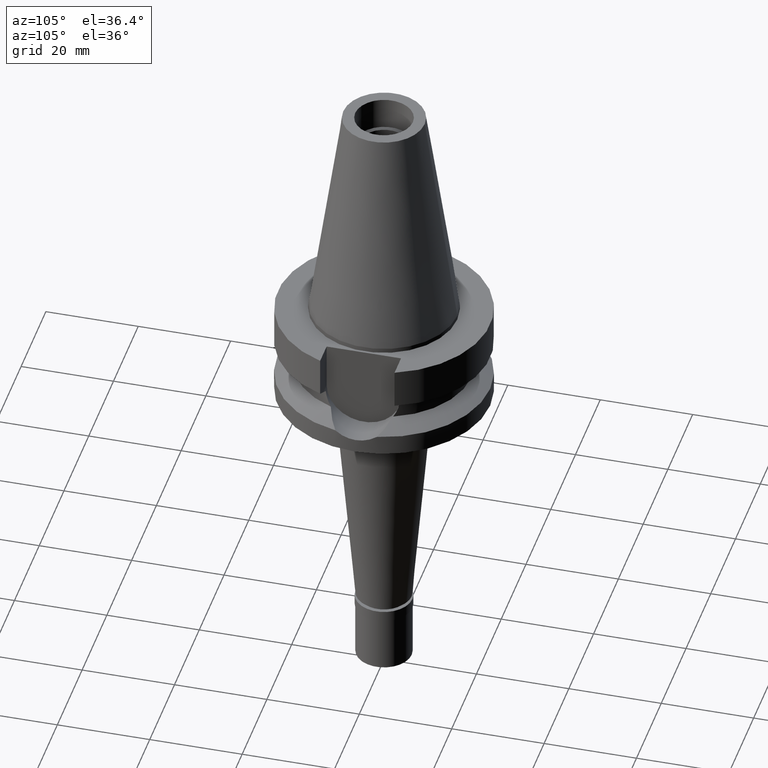
[diagram: clean part render]
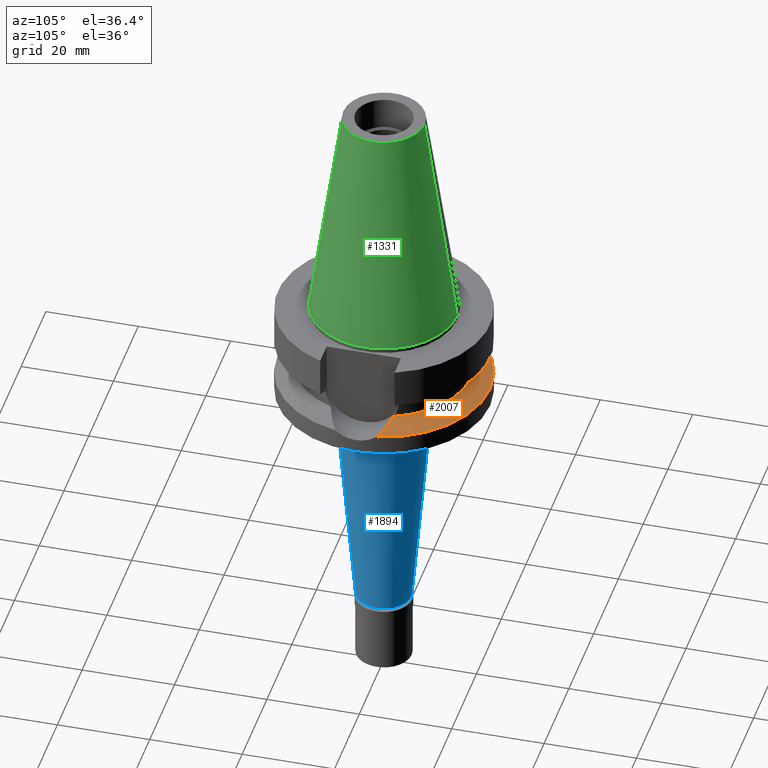
[diagram: same view with three faces highlighted in distinct colors, each labeled with its STEP entity id]
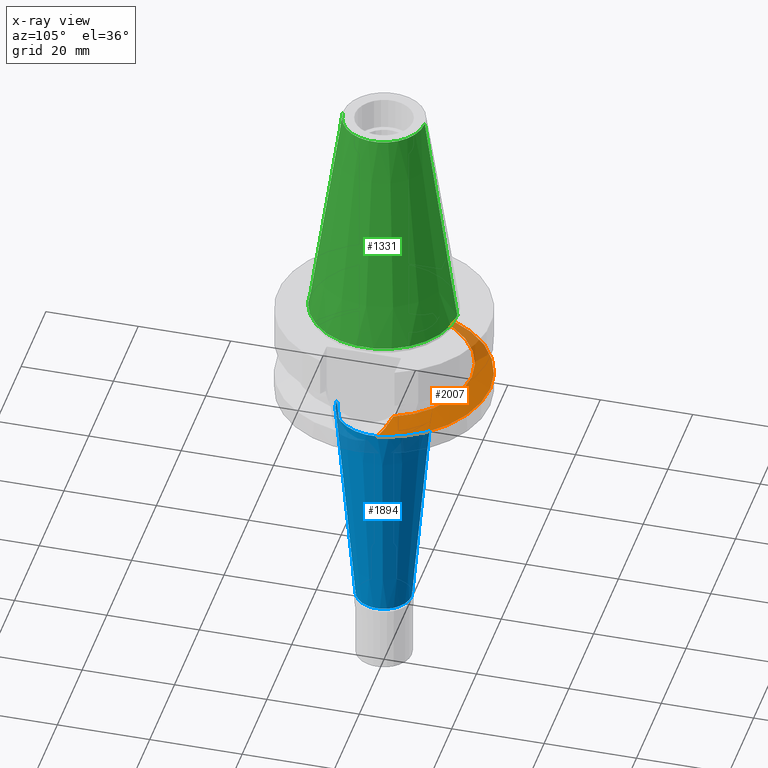
[diagram: x-ray of the same camera — body ghosted, the three highlighted faces saturated]
A machine part, auxiliary view with three faces highlighted in distinct colors.
The next image is the same camera in x-ray (body ghosted, the three faces saturated) — at least one of them is partly hidden behind the body in this view.
Their STEP definitions:

[orange] entity #2007 — the highlighted conical surface has half-angle 60 deg.
#47 = VERTEX_POINT ( 'NONE', #1127 ) ;
#80 = DIRECTION ( 'NONE',  ( 0.0000000000000000000, -1.000000000000000000, 0.0000000000000000000 ) ) ;
#239 = ORIENTED_EDGE ( 'NONE', *, *, #2197, .F. ) ;
#261 = CIRCLE ( 'NONE', #1932, 19.00000000000000000 ) ;
#275 = AXIS2_PLACEMENT_3D ( 'NONE', #821, #1728, #782 ) ;
#516 = CIRCLE ( 'NONE', #275, 23.00000000000000000 ) ;
#588 = CARTESIAN_POINT ( 'NONE',  ( -22.55786346208000026, 4.488072640470000430, -17.63279163029000074 ) ) ;
#606 = CARTESIAN_POINT ( 'NONE',  ( 22.55786346208000026, 4.488072640470000430, -17.63279163029000074 ) ) ;
#639 = ORIENTED_EDGE ( 'NONE', *, *, #1483, .F. ) ;
#657 = VERTEX_POINT ( 'NONE', #588 ) ;
#720 = CARTESIAN_POINT ( 'NONE',  ( 0.0000000000000000000, 23.00000000000000000, -17.63279163029000074 ) ) ;
#737 = CONICAL_SURFACE ( 'NONE', #1220, 21.00000000000000000, 1.047197551196400456 ) ;
#742 = EDGE_CURVE ( 'NONE', #2048, #897, #516, .T. ) ;
#744 = CARTESIAN_POINT ( 'NONE',  ( -21.37344794607803067, 5.343258989353176780, -17.05846002349050750 ) ) ;
#782 = DIRECTION ( 'NONE',  ( 0.0000000000000000000, 1.000000000000000000, 0.0000000000000000000 ) ) ;
#817 = B_SPLINE_CURVE_WITH_KNOTS ( 'NONE', 3,
 ( #958, #1441, #744, #1660 ),
 .UNSPECIFIED., .F., .F.,
 ( 4, 4 ),
 ( 0.0000000000000000000, 1.000000000000000000 ),
 .UNSPECIFIED. ) ;
#821 = CARTESIAN_POINT ( 'NONE',  ( 0.0000000000000000000, 1.022848384030000006E-14, -17.63279163029000074 ) ) ;
#897 = VERTEX_POINT ( 'NONE', #1160 ) ;
#914 = CARTESIAN_POINT ( 'NONE',  ( 0.0000000000000000000, 1.022848384030000006E-14, -17.63279163029000074 ) ) ;
#936 = CARTESIAN_POINT ( 'NONE',  ( -17.75736593456000278, 6.758398853743999624, -15.32339055352999857 ) ) ;
#958 = CARTESIAN_POINT ( 'NONE',  ( -17.75736593456000278, 6.758398853743999624, -15.32339055352999857 ) ) ;
#969 = CARTESIAN_POINT ( 'NONE',  ( 0.0000000000000000000, 1.022848384030000006E-14, -15.32339055352999857 ) ) ;
#982 = CARTESIAN_POINT ( 'NONE',  ( 0.0000000000000000000, 1.022848384030000006E-14, -16.47809109191000232 ) ) ;
#995 = DIRECTION ( 'NONE',  ( 0.0000000000000000000, 0.0000000000000000000, 1.000000000000000000 ) ) ;
#1127 = CARTESIAN_POINT ( 'NONE',  ( 17.75736593456000278, 6.758398853743999624, -15.32339055352999857 ) ) ;
#1145 = DIRECTION ( 'NONE',  ( 0.0000000000000000000, 0.0000000000000000000, -1.000000000000000000 ) ) ;
#1160 = CARTESIAN_POINT ( 'NONE',  ( 22.55786346208000026, 4.488072640470000430, -17.63279163029000074 ) ) ;
#1220 = AXIS2_PLACEMENT_3D ( 'NONE', #982, #2135, #80 ) ;
#1230 = ORIENTED_EDGE ( 'NONE', *, *, #742, .F. ) ;
#1314 = CARTESIAN_POINT ( 'NONE',  ( 17.75736593456000278, 6.758398853743999624, -15.32339055352999857 ) ) ;
#1378 = EDGE_CURVE ( 'NONE', #657, #2048, #1647, .T. ) ;
#1441 = CARTESIAN_POINT ( 'NONE',  ( -19.77328210357136484, 6.137069160717628868, -16.28355951940487500 ) ) ;
#1483 = EDGE_CURVE ( 'NONE', #2819, #657, #817, .T. ) ;
#1551 = EDGE_CURVE ( 'NONE', #47, #2819, #261, .T. ) ;
#1647 = CIRCLE ( 'NONE', #2465, 23.00000000000001066 ) ;
#1660 = CARTESIAN_POINT ( 'NONE',  ( -22.55786346208000026, 4.488072640470000430, -17.63279163029000074 ) ) ;
#1728 = DIRECTION ( 'NONE',  ( 0.0000000000000000000, 0.0000000000000000000, -1.000000000000000000 ) ) ;
#1740 = EDGE_LOOP ( 'NONE', ( #2666, #239, #1230, #2823, #639 ) ) ;
#1851 = DIRECTION ( 'NONE',  ( -0.9807766722643714852, 0.1951335930638943839, 0.0000000000000000000 ) ) ;
#1932 = AXIS2_PLACEMENT_3D ( 'NONE', #969, #995, #2400 ) ;
#1937 = CARTESIAN_POINT ( 'NONE',  ( 19.77328210349241289, 6.137069160753068964, -16.28355951935007795 ) ) ;
#2007 = ADVANCED_FACE ( 'NONE', ( #2321 ), #737, .T. ) ;
#2048 = VERTEX_POINT ( 'NONE', #720 ) ;
#2135 = DIRECTION ( 'NONE',  ( 0.0000000000000000000, 0.0000000000000000000, -1.000000000000000000 ) ) ;
#2197 = EDGE_CURVE ( 'NONE', #897, #47, #2687, .T. ) ;
#2321 = FACE_OUTER_BOUND ( 'NONE', #1740, .T. ) ;
#2400 = DIRECTION ( 'NONE',  ( 0.0000000000000000000, 1.000000000000000000, 0.0000000000000000000 ) ) ;
#2465 = AXIS2_PLACEMENT_3D ( 'NONE', #914, #1145, #1851 ) ;
#2649 = CARTESIAN_POINT ( 'NONE',  ( 21.37344794599907871, 5.343258989407346782, -17.05846002345411705 ) ) ;
#2666 = ORIENTED_EDGE ( 'NONE', *, *, #1551, .F. ) ;
#2687 = B_SPLINE_CURVE_WITH_KNOTS ( 'NONE', 3,
 ( #606, #2649, #1937, #1314 ),
 .UNSPECIFIED., .F., .F.,
 ( 4, 4 ),
 ( 0.0000000000000000000, 1.000000000000000000 ),
 .UNSPECIFIED. ) ;
#2819 = VERTEX_POINT ( 'NONE', #936 ) ;
#2823 = ORIENTED_EDGE ( 'NONE', *, *, #1378, .F. ) ;

[blue] entity #1894 — the highlighted conical surface has half-angle 5 deg.
#7 = CARTESIAN_POINT ( 'NONE',  ( 0.0000000000000000000, -6.000000000000000000, -74.80000000000001137 ) ) ;
#20 = VECTOR ( 'NONE', #514, 1000.000000000000000 ) ;
#56 = VERTEX_POINT ( 'NONE', #2761 ) ;
#82 = CIRCLE ( 'NONE', #1850, 10.18195811653999883 ) ;
#210 = LINE ( 'NONE', #1118, #1718 ) ;
#272 = ORIENTED_EDGE ( 'NONE', *, *, #446, .F. ) ;
#446 = EDGE_CURVE ( 'NONE', #1073, #56, #210, .T. ) ;
#514 = DIRECTION ( 'NONE',  ( 0.0000000000000000000, 0.08715574274767391716, -0.9961946980917442129 ) ) ;
#519 = CARTESIAN_POINT ( 'NONE',  ( 0.0000000000000000000, 0.0000000000000000000, -50.89999999999999858 ) ) ;
#766 = VERTEX_POINT ( 'NONE', #7 ) ;
#768 = FACE_OUTER_BOUND ( 'NONE', #1340, .T. ) ;
#840 = EDGE_CURVE ( 'NONE', #1385, #1073, #82, .T. ) ;
#912 = DIRECTION ( 'NONE',  ( 0.0000000000000000000, -0.08715574274767391716, -0.9961946980917442129 ) ) ;
#940 = AXIS2_PLACEMENT_3D ( 'NONE', #519, #1412, #2816 ) ;
#952 = LINE ( 'NONE', #1857, #20 ) ;
#1023 = AXIS2_PLACEMENT_3D ( 'NONE', #1387, #1807, #1625 ) ;
#1073 = VERTEX_POINT ( 'NONE', #2461 ) ;
#1118 = CARTESIAN_POINT ( 'NONE',  ( 0.0000000000000000000, 10.18195811653999883, -27.00000000000000000 ) ) ;
#1258 = ORIENTED_EDGE ( 'NONE', *, *, #2706, .T. ) ;
#1340 = EDGE_LOOP ( 'NONE', ( #2247, #1258, #1485, #272 ) ) ;
#1374 = DIRECTION ( 'NONE',  ( 0.0000000000000000000, 0.0000000000000000000, 1.000000000000000000 ) ) ;
#1385 = VERTEX_POINT ( 'NONE', #2754 ) ;
#1387 = CARTESIAN_POINT ( 'NONE',  ( 0.0000000000000000000, 0.0000000000000000000, -74.80000000000001137 ) ) ;
#1412 = DIRECTION ( 'NONE',  ( 0.0000000000000000000, 0.0000000000000000000, 1.000000000000000000 ) ) ;
#1485 = ORIENTED_EDGE ( 'NONE', *, *, #1773, .T. ) ;
#1625 = DIRECTION ( 'NONE',  ( 0.0000000000000000000, -1.000000000000000000, 0.0000000000000000000 ) ) ;
#1718 = VECTOR ( 'NONE', #912, 1000.000000000000000 ) ;
#1773 = EDGE_CURVE ( 'NONE', #766, #56, #2372, .T. ) ;
#1807 = DIRECTION ( 'NONE',  ( 0.0000000000000000000, 0.0000000000000000000, 1.000000000000000000 ) ) ;
#1827 = CARTESIAN_POINT ( 'NONE',  ( 0.0000000000000000000, 0.0000000000000000000, -27.00000000000000000 ) ) ;
#1850 = AXIS2_PLACEMENT_3D ( 'NONE', #1827, #1374, #2729 ) ;
#1857 = CARTESIAN_POINT ( 'NONE',  ( 0.0000000000000000000, -10.18195811653999883, -27.00000000000000000 ) ) ;
#1894 = ADVANCED_FACE ( 'NONE', ( #768 ), #2240, .T. ) ;
#2240 = CONICAL_SURFACE ( 'NONE', #940, 8.090979058269999413, 0.08726646259969973729 ) ;
#2247 = ORIENTED_EDGE ( 'NONE', *, *, #840, .F. ) ;
#2372 = CIRCLE ( 'NONE', #1023, 6.000000000000000000 ) ;
#2461 = CARTESIAN_POINT ( 'NONE',  ( 0.0000000000000000000, 10.18195811653999883, -27.00000000000000000 ) ) ;
#2706 = EDGE_CURVE ( 'NONE', #1385, #766, #952, .T. ) ;
#2729 = DIRECTION ( 'NONE',  ( 0.0000000000000000000, -1.000000000000000000, 0.0000000000000000000 ) ) ;
#2754 = CARTESIAN_POINT ( 'NONE',  ( 0.0000000000000000000, -10.18195811653999883, -27.00000000000000000 ) ) ;
#2761 = CARTESIAN_POINT ( 'NONE',  ( 0.0000000000000000000, 6.000000000000000000, -74.80000000000001137 ) ) ;
#2816 = DIRECTION ( 'NONE',  ( 0.0000000000000000000, 1.000000000000000000, 0.0000000000000000000 ) ) ;

[green] entity #1331 — the highlighted conical surface has half-angle 8.297 deg.
#98 = CARTESIAN_POINT ( 'NONE',  ( 0.0000000000000000000, -8.816791732783000768, 48.39999999999999858 ) ) ;
#158 = EDGE_CURVE ( 'NONE', #469, #598, #1456, .T. ) ;
#273 = EDGE_CURVE ( 'NONE', #2086, #598, #2390, .T. ) ;
#352 = CONICAL_SURFACE ( 'NONE', #1269, 12.34589586639000025, 0.1448099680379422438 ) ;
#425 = DIRECTION ( 'NONE',  ( 0.0000000000000000000, 0.0000000000000000000, -1.000000000000000000 ) ) ;
#469 = VERTEX_POINT ( 'NONE', #2771 ) ;
#572 = ORIENTED_EDGE ( 'NONE', *, *, #273, .F. ) ;
#598 = VERTEX_POINT ( 'NONE', #832 ) ;
#612 = VECTOR ( 'NONE', #2150, 1000.000000000000114 ) ;
#656 = EDGE_CURVE ( 'NONE', #1527, #2086, #1936, .T. ) ;
#661 = CARTESIAN_POINT ( 'NONE',  ( 0.0000000000000000000, 1.521011324540999938E-14, 24.19999999999999929 ) ) ;
#673 = DIRECTION ( 'NONE',  ( 0.0000000000000000000, 1.000000000000000000, 0.0000000000000000000 ) ) ;
#730 = AXIS2_PLACEMENT_3D ( 'NONE', #1400, #1568, #673 ) ;
#832 = CARTESIAN_POINT ( 'NONE',  ( 0.0000000000000000000, -15.87500000000000000, -1.598721155459999993E-13 ) ) ;
#853 = ORIENTED_EDGE ( 'NONE', *, *, #1309, .T. ) ;
#885 = CIRCLE ( 'NONE', #730, 8.816791732783000768 ) ;
#944 = DIRECTION ( 'NONE',  ( 0.0000000000000000000, -1.000000000000000000, 0.0000000000000000000 ) ) ;
#989 = EDGE_LOOP ( 'NONE', ( #853, #1559, #572, #2827 ) ) ;
#1135 = FACE_OUTER_BOUND ( 'NONE', #989, .T. ) ;
#1139 = AXIS2_PLACEMENT_3D ( 'NONE', #2065, #425, #2008 ) ;
#1269 = AXIS2_PLACEMENT_3D ( 'NONE', #661, #2040, #944 ) ;
#1309 = EDGE_CURVE ( 'NONE', #1527, #469, #885, .T. ) ;
#1331 = ADVANCED_FACE ( 'NONE', ( #1135 ), #352, .T. ) ;
#1400 = CARTESIAN_POINT ( 'NONE',  ( 0.0000000000000000000, 1.521011324540999938E-14, 48.39999999999999858 ) ) ;
#1456 = LINE ( 'NONE', #98, #2756 ) ;
#1527 = VERTEX_POINT ( 'NONE', #2351 ) ;
#1559 = ORIENTED_EDGE ( 'NONE', *, *, #158, .T. ) ;
#1568 = DIRECTION ( 'NONE',  ( 0.0000000000000000000, 0.0000000000000000000, -1.000000000000000000 ) ) ;
#1704 = DIRECTION ( 'NONE',  ( 0.0000000000000000000, -0.1443043893539925626, -0.9895333461855498891 ) ) ;
#1936 = LINE ( 'NONE', #1953, #612 ) ;
#1953 = CARTESIAN_POINT ( 'NONE',  ( 0.0000000000000000000, 8.816791732783000768, 48.39999999999999858 ) ) ;
#2008 = DIRECTION ( 'NONE',  ( 0.0000000000000000000, 1.000000000000000000, 0.0000000000000000000 ) ) ;
#2040 = DIRECTION ( 'NONE',  ( 0.0000000000000000000, 0.0000000000000000000, -1.000000000000000000 ) ) ;
#2065 = CARTESIAN_POINT ( 'NONE',  ( 0.0000000000000000000, 1.521011324540999938E-14, -3.694822225953000089E-13 ) ) ;
#2086 = VERTEX_POINT ( 'NONE', #2378 ) ;
#2150 = DIRECTION ( 'NONE',  ( 0.0000000000000000000, 0.1443043893539925626, -0.9895333461855498891 ) ) ;
#2351 = CARTESIAN_POINT ( 'NONE',  ( 0.0000000000000000000, 8.816791732783000768, 48.39999999999999858 ) ) ;
#2378 = CARTESIAN_POINT ( 'NONE',  ( 0.0000000000000000000, 15.87500000000000000, -1.598721155459999993E-13 ) ) ;
#2390 = CIRCLE ( 'NONE', #1139, 15.87500000000000000 ) ;
#2756 = VECTOR ( 'NONE', #1704, 1000.000000000000114 ) ;
#2771 = CARTESIAN_POINT ( 'NONE',  ( 0.0000000000000000000, -8.816791732783000768, 48.39999999999999858 ) ) ;
#2827 = ORIENTED_EDGE ( 'NONE', *, *, #656, .F. ) ;